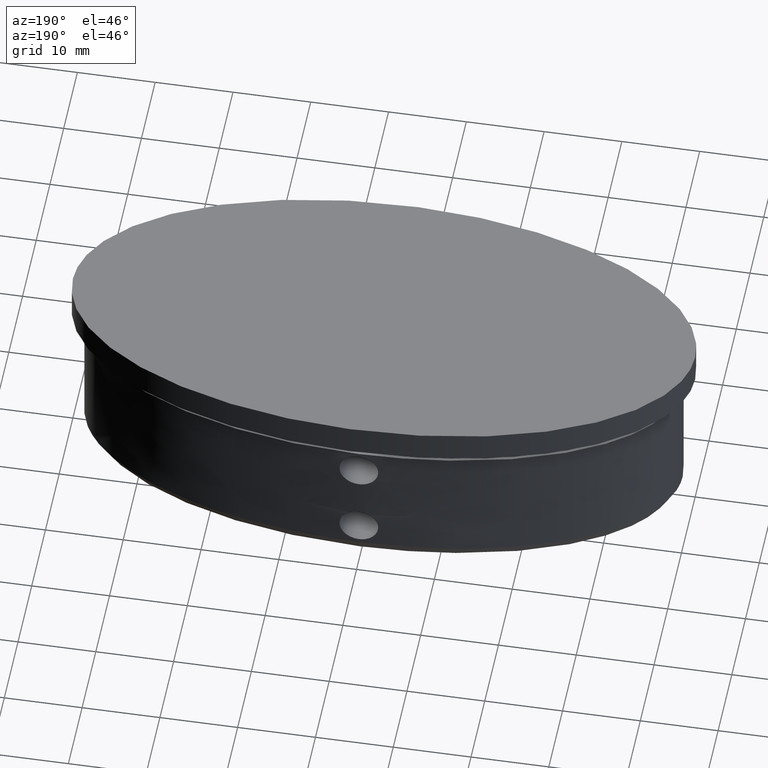
[diagram: clean part render]
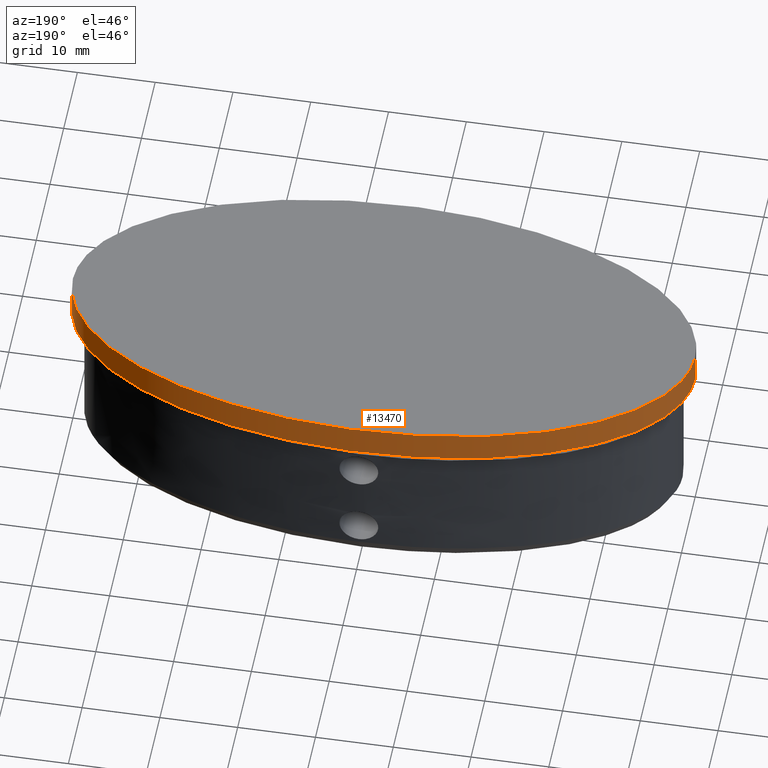
[diagram: same view with one face highlighted and labeled with its STEP entity id]
A machine part, auxiliary view. The second image highlights one B-rep face of the part: STEP entity #13470.
In plain terms, the highlighted face is a freeform B-spline surface patch.
Its self-contained STEP definition (entity closure, byte-faithful):
#350 = LINE ( 'NONE', #13184, #13552 ) ;
#612 = CARTESIAN_POINT ( 'NONE',  ( 40.00000000000000000, 0.000000000000000000, 0.000000000000000000 ) ) ;
#1054 = CARTESIAN_POINT ( 'NONE',  ( 40.00000000000000000, 39.99999999999999289, 4.000000000000000000 ) ) ;
#1118 = CARTESIAN_POINT ( 'NONE',  ( 40.00000000000000000, 0.000000000000000000, 4.000000000000000000 ) ) ;
#1434 = VERTEX_POINT ( 'NONE', #5240 ) ;
#1599 = CARTESIAN_POINT ( 'NONE',  ( 40.00000000000000000, 0.000000000000000000, 4.000000000000000000 ) ) ;
#2638 = VERTEX_POINT ( 'NONE', #612 ) ;
#2771 = CARTESIAN_POINT ( 'NONE',  ( -40.00000000000000000, 2.449293598294706513E-15, 0.000000000000000000 ) ) ;
#3196 = CARTESIAN_POINT ( 'NONE',  ( 40.00000000000000000, 39.99999999999999289, 4.000000000000000000 ) ) ;
#4290 = LINE ( 'NONE', #16715, #8504 ) ;
#4538 = ORIENTED_EDGE ( 'NONE', *, *, #14465, .T. ) ;
#5240 = CARTESIAN_POINT ( 'NONE',  ( -40.00000000000000000, 2.449293598294706513E-15, 0.000000000000000000 ) ) ;
#5508 = EDGE_CURVE ( 'NONE', #13358, #2638, #350, .T. ) ;
#5539 = ORIENTED_EDGE ( 'NONE', *, *, #12592, .F. ) ;
#6805 = CARTESIAN_POINT ( 'NONE',  ( -40.00000000000000000, 2.449293598294706513E-15, 4.000000000000000000 ) ) ;
#6980 = CARTESIAN_POINT ( 'NONE',  ( -39.99999999999999289, 39.99999999999999289, 4.000000000000000000 ) ) ;
#7219 =( BOUNDED_CURVE ( )  B_SPLINE_CURVE ( 3, ( #19086, #11694, #11753, #2771 ),
 .UNSPECIFIED., .F., .T. ) 
 B_SPLINE_CURVE_WITH_KNOTS ( ( 4, 4 ),
 ( 0.000000000000000000, 3.141592653589793116 ),
 .UNSPECIFIED. ) 
 CURVE ( )  GEOMETRIC_REPRESENTATION_ITEM ( )  RATIONAL_B_SPLINE_CURVE ( ( 1.000000000000000000, 0.3333333333333333703, 0.3333333333333333703, 1.000000000000000000 ) ) 
 REPRESENTATION_ITEM ( '' )  );
#7411 = EDGE_CURVE ( 'NONE', #13358, #18108, #17692, .T. ) ;
#8301 = ORIENTED_EDGE ( 'NONE', *, *, #7411, .F. ) ;
#8353 = CARTESIAN_POINT ( 'NONE',  ( -39.99999999999999289, 39.99999999999999289, 0.000000000000000000 ) ) ;
#8504 = VECTOR ( 'NONE', #13780, 1000.000000000000000 ) ;
#8543 = CARTESIAN_POINT ( 'NONE',  ( -40.00000000000000000, 2.449293598294706513E-15, 0.000000000000000000 ) ) ;
#9276 = CARTESIAN_POINT ( 'NONE',  ( 40.00000000000000000, 0.000000000000000000, 4.000000000000000000 ) ) ;
#10689 = DIRECTION ( 'NONE',  ( -0.000000000000000000, -0.000000000000000000, -1.000000000000000000 ) ) ;
#11694 = CARTESIAN_POINT ( 'NONE',  ( 40.00000000000000000, 39.99999999999999289, 0.000000000000000000 ) ) ;
#11753 = CARTESIAN_POINT ( 'NONE',  ( -39.99999999999999289, 39.99999999999999289, 0.000000000000000000 ) ) ;
#12023 = FACE_OUTER_BOUND ( 'NONE', #16203, .T. ) ;
#12592 = EDGE_CURVE ( 'NONE', #18108, #1434, #4290, .T. ) ;
#13184 = CARTESIAN_POINT ( 'NONE',  ( 40.00000000000000000, 0.000000000000000000, 4.000000000000000000 ) ) ;
#13358 = VERTEX_POINT ( 'NONE', #1599 ) ;
#13470 = ADVANCED_FACE ( 'NONE', ( #12023 ), #16014, .F. ) ;
#13552 = VECTOR ( 'NONE', #10689, 1000.000000000000000 ) ;
#13780 = DIRECTION ( 'NONE',  ( -0.000000000000000000, -0.000000000000000000, -1.000000000000000000 ) ) ;
#13812 = CARTESIAN_POINT ( 'NONE',  ( -39.99999999999999289, 39.99999999999999289, 4.000000000000000000 ) ) ;
#14465 = EDGE_CURVE ( 'NONE', #2638, #1434, #7219, .T. ) ;
#15200 = CARTESIAN_POINT ( 'NONE',  ( -40.00000000000000000, 2.449293598294706513E-15, 4.000000000000000000 ) ) ;
#16014 =( BOUNDED_SURFACE ( )  B_SPLINE_SURFACE ( 3, 1, ( 
 ( #1118, #18924 ),
 ( #1054, #17363 ),
 ( #6980, #8353 ),
 ( #17548, #8543 ) ),
 .UNSPECIFIED., .F., .F., .T. ) 
 B_SPLINE_SURFACE_WITH_KNOTS ( ( 4, 4 ),
 ( 2, 2 ),
 ( 0.000000000000000000, 1.000000000000000000 ),
 ( 0.000000000000000000, 1.000000000000000000 ),
 .UNSPECIFIED. ) 
 GEOMETRIC_REPRESENTATION_ITEM ( )  RATIONAL_B_SPLINE_SURFACE ( (
 ( 1.000000000000000000, 1.000000000000000000),
 ( 0.3333333333333333703, 0.3333333333333333703),
 ( 0.3333333333333333703, 0.3333333333333333703),
 ( 1.000000000000000000, 1.000000000000000000) ) ) 
 REPRESENTATION_ITEM ( '' )  SURFACE ( )  );
#16203 = EDGE_LOOP ( 'NONE', ( #5539, #8301, #17917, #4538 ) ) ;
#16715 = CARTESIAN_POINT ( 'NONE',  ( -40.00000000000000000, 2.449293598294706513E-15, 4.000000000000000000 ) ) ;
#17363 = CARTESIAN_POINT ( 'NONE',  ( 40.00000000000000000, 39.99999999999999289, 0.000000000000000000 ) ) ;
#17548 = CARTESIAN_POINT ( 'NONE',  ( -40.00000000000000000, 2.449293598294706513E-15, 4.000000000000000000 ) ) ;
#17692 =( BOUNDED_CURVE ( )  B_SPLINE_CURVE ( 3, ( #9276, #3196, #13812, #15200 ),
 .UNSPECIFIED., .F., .F. ) 
 B_SPLINE_CURVE_WITH_KNOTS ( ( 4, 4 ),
 ( 0.000000000000000000, 3.141592653589793116 ),
 .UNSPECIFIED. ) 
 CURVE ( )  GEOMETRIC_REPRESENTATION_ITEM ( )  RATIONAL_B_SPLINE_CURVE ( ( 1.000000000000000000, 0.3333333333333333703, 0.3333333333333333703, 1.000000000000000000 ) ) 
 REPRESENTATION_ITEM ( '' )  );
#17917 = ORIENTED_EDGE ( 'NONE', *, *, #5508, .T. ) ;
#18108 = VERTEX_POINT ( 'NONE', #6805 ) ;
#18924 = CARTESIAN_POINT ( 'NONE',  ( 40.00000000000000000, 0.000000000000000000, 0.000000000000000000 ) ) ;
#19086 = CARTESIAN_POINT ( 'NONE',  ( 40.00000000000000000, 0.000000000000000000, 0.000000000000000000 ) ) ;